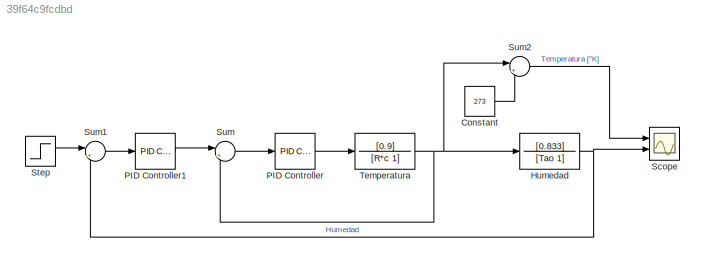
MODEL slx_39f64c9fcdbd
KIND model
CONFIG AbsTol = auto
CONFIG EnableMultiTasking = off
CONFIG FixedStep = auto
CONFIG MaxStep = auto
CONFIG MinStep = auto
CONFIG RelTol = 1e-3
CONFIG SampleTimeConstraint = Unconstrained
CONFIG SolverName = VariableStepAuto
CONFIG StartTime = 0.0
CONFIG StopTime = 1000
BLOCK [Constant] Constant
  Value = 273
BLOCK [TransferFcn] Humedad
  Denominator = [Tao 1]
  Numerator = [0.833]
BLOCK [Reference] PID Controller  REF=pid_lib/PID Controller
  Ports = [1, 1]
  SourceBlock = pid_lib/PID Controller
  SourceProductBaseCode = SL
  SourceType = PID 1dof
BLOCK [Reference] PID Controller1  REF=pid_lib/PID Controller
  Ports = [1, 1]
  SourceBlock = pid_lib/PID Controller
  SourceProductBaseCode = SL
  SourceType = PID 1dof
BLOCK [Scope] Scope
  Floating = off
  NumInputPorts = 2
  Ports = [2]
  ScopeSpecificationString = Simulink.scopes.TimeScopeBlockCfg('CurrentConfiguration', extmgr.ConfigurationSet(extmgr.Configuration('Core','General UI',true),extmgr.Configuration('Core','Source UI',true),extmgr.Configuration('Sources','WiredSimulink',true),extmgr.Configuration('Visuals','Time Domain',true,'SerializedDisplays',{struct('MinYLimReal','267.22213','MaxYLimReal','325.00081','YLabelReal','','MinYLimMag','267.22213',...<+1979ch>
BLOCK [Step] Step
  After = 38.5
  SampleTime = 0
BLOCK [Sum] Sum
  Inputs = |+-
  Ports = [2, 1]
BLOCK [Sum] Sum1
  Inputs = |+-
  Ports = [2, 1]
BLOCK [Sum] Sum2
  Inputs = |++
  Ports = [2, 1]
BLOCK [TransferFcn] Temperatura
  Denominator = [R*c 1]
  Numerator = [0.9]
LINE Constant:1 -> Sum2:2
NET Humedad:1 -> Scope:2, Sum1:2
LINE PID Controller1:1 -> Sum:1
LINE PID Controller:1 -> Temperatura:1
LINE Step:1 -> Sum1:1
LINE Sum1:1 -> PID Controller1:1
LINE Sum2:1 -> Scope:1
LINE Sum:1 -> PID Controller:1
NET Temperatura:1 -> Humedad:1, Sum2:1, Sum:2
note: NET lines group one-source signal fan-out (src -> all destinations, sorted); 1:1 wires keep LINE
